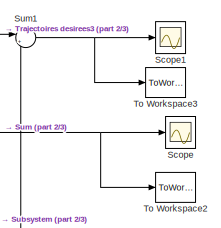
[diagram: root canvas - part 1/3, top right region]
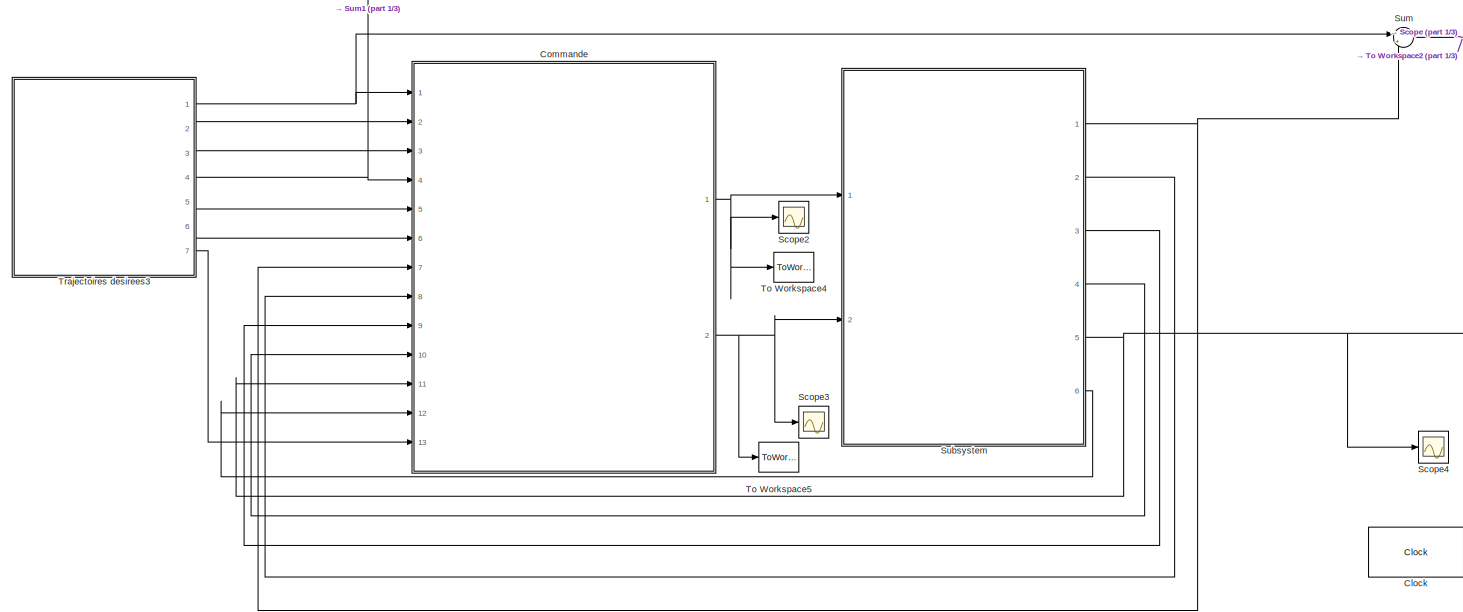
[diagram: root canvas - part 2/3, most of the canvas]
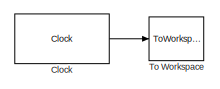
[diagram: root canvas - part 3/3, bottom right region]
MODEL slx_9c1aa722ab29
KIND model
CONFIG AbsTol = auto
CONFIG FixedStep = auto
CONFIG MaxStep = auto
CONFIG MinStep = auto
CONFIG RelTol = 1e-3
CONFIG SampleTimeConstraint = Unconstrained
CONFIG Solver = ode45
CONFIG SolverMode = SingleTasking
CONFIG SolverName = ode45
CONFIG StartTime = 0.0
CONFIG StopTime = 10
BLOCK [Clock] Clock
  Decimation = 1
  DisplayTime = on
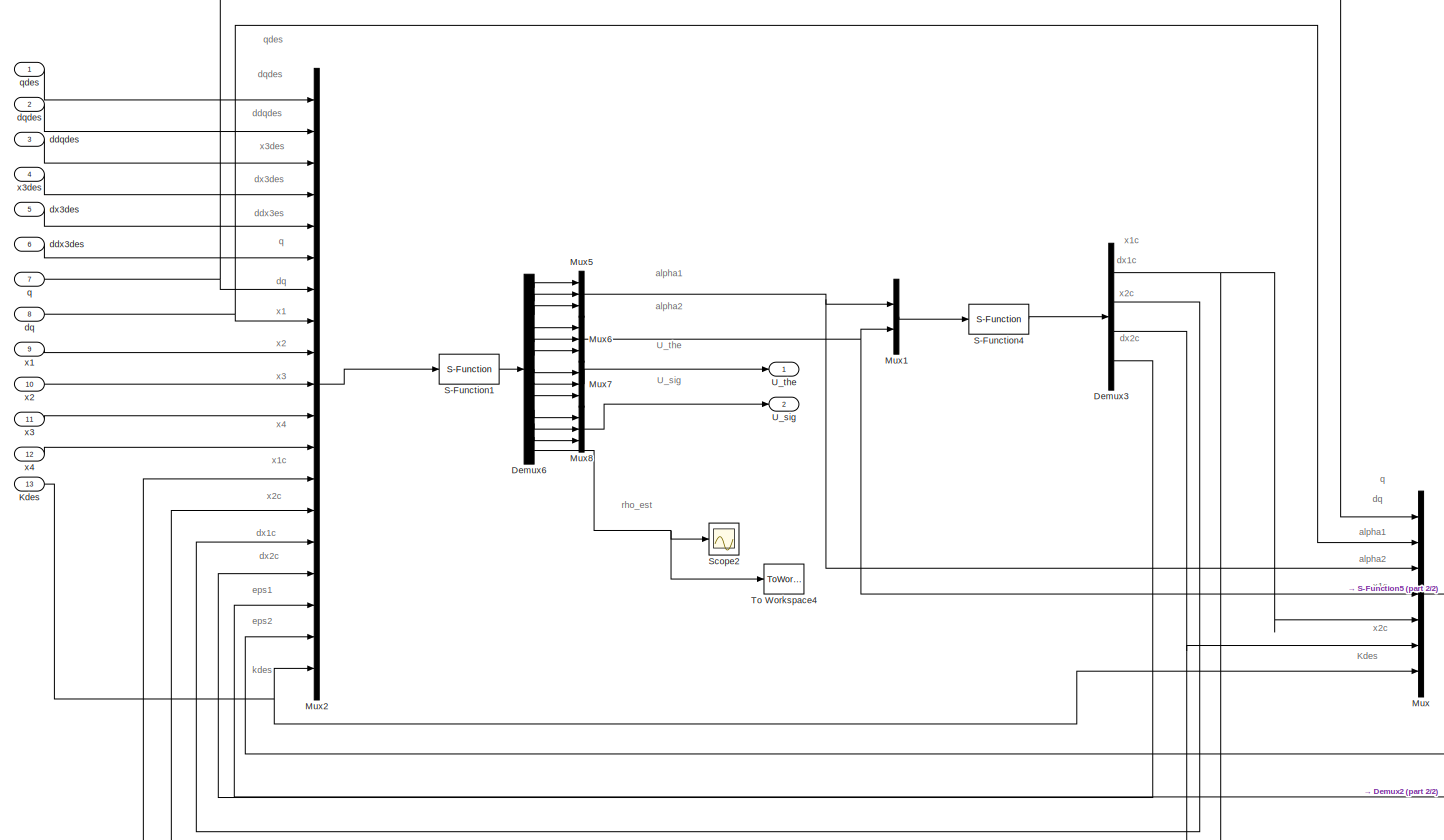
[diagram: Commande - part 1/2, most of the canvas]
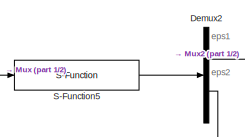
[diagram: Commande - part 2/2, bottom right region]
BLOCK [SubSystem] Commande
  Ports = [13, 2]
  RequestExecContextInheritance = off
BLOCK [Demux] Commande/Demux2
  DisplayOption = bar
  Outputs = 2
  Ports = [1, 2]
BLOCK [Demux] Commande/Demux3
  DisplayOption = bar
  Ports = [1, 4]
BLOCK [Demux] Commande/Demux6
  DisplayOption = bar
  Outputs = 13
  Ports = [1, 13]
BLOCK [Inport] Commande/Kdes
  IconDisplay = Port number
  Port = 13
BLOCK [Mux] Commande/Mux
  DisplayOption = bar
  Inputs = 7
  Ports = [7, 1]
BLOCK [Mux] Commande/Mux1
  DisplayOption = bar
  Inputs = 2
  Ports = [2, 1]
BLOCK [Mux] Commande/Mux2
  DisplayOption = bar
  Inputs = 19
  Ports = [19, 1]
BLOCK [Mux] Commande/Mux5
  DisplayOption = bar
  Inputs = 3
  Ports = [3, 1]
BLOCK [Mux] Commande/Mux6
  DisplayOption = bar
  Inputs = 3
  Ports = [3, 1]
BLOCK [Mux] Commande/Mux7
  DisplayOption = bar
  Inputs = 3
  Ports = [3, 1]
BLOCK [Mux] Commande/Mux8
  DisplayOption = bar
  Inputs = 3
  Ports = [3, 1]
BLOCK [S-Function] Commande/S-Function1
  EnableBusSupport = off
  FunctionName = Commd2_c
  Ports = [1, 1]
  SFunctionDeploymentMode = off
BLOCK [S-Function] Commande/S-Function4
  EnableBusSupport = off
  FunctionName = CmdF
  Ports = [1, 1]
  SFunctionDeploymentMode = off
BLOCK [S-Function] Commande/S-Function5
  EnableBusSupport = off
  FunctionName = CompensatedError
  Ports = [1, 1]
  SFunctionDeploymentMode = off
BLOCK [Scope] Commande/Scope2
  DataFormat = StructureWithTime
  Decimation = 1
  Floating = off
  Grid = on
  LimitDataPoints = off
  MaxDataPoints = 5000
  NumInputPorts = 1
  Ports = [1]
  SampleInput = off
  SampleTime = -1
  SaveName = ScopeData1
  SaveToWorkspace = off
  ShowLegends = off
  TickLabels = OneTimeTick
  TimeRange = auto
  YMax = 52.86321
  YMin = -5.86261
  ZoomMode = on
BLOCK [ToWorkspace] Commande/To Workspace4
  MaxDataPoints = inf
  Ports = [1]
  SampleTime = -1
  VariableName = rho_est
BLOCK [Outport] Commande/U_sig
  IconDisplay = Port number
  Port = 2
BLOCK [Outport] Commande/U_the
  IconDisplay = Port number
BLOCK [Inport] Commande/ddqdes
  IconDisplay = Port number
  Port = 3
BLOCK [Inport] Commande/ddx3des
  IconDisplay = Port number
  Port = 6
BLOCK [Inport] Commande/dq
  IconDisplay = Port number
  Port = 8
BLOCK [Inport] Commande/dqdes
  IconDisplay = Port number
  Port = 2
BLOCK [Inport] Commande/dx3des
  IconDisplay = Port number
  Port = 5
BLOCK [Inport] Commande/q
  IconDisplay = Port number
  Port = 7
BLOCK [Inport] Commande/qdes
  IconDisplay = Port number
BLOCK [Inport] Commande/x1
  IconDisplay = Port number
  Port = 9
BLOCK [Inport] Commande/x2
  IconDisplay = Port number
  Port = 10
BLOCK [Inport] Commande/x3
  IconDisplay = Port number
  Port = 11
BLOCK [Inport] Commande/x3des
  IconDisplay = Port number
  Port = 4
BLOCK [Inport] Commande/x4
  IconDisplay = Port number
  Port = 12
BLOCK [Scope] Scope
  DataFormat = StructureWithTime
  Decimation = 1
  Floating = off
  Grid = on
  LimitDataPoints = off
  MaxDataPoints = 5000
  NumInputPorts = 1
  Ports = [1]
  SampleInput = off
  SampleTime = -1
  SaveName = ScopeData
  SaveToWorkspace = off
  ShowLegends = off
  TickLabels = OneTimeTick
  TimeRange = auto
  YMax = 0.00215
  YMin = -0.00029
  ZoomMode = on
BLOCK [Scope] Scope1
  DataFormat = StructureWithTime
  Decimation = 1
  Floating = off
  Grid = on
  LimitDataPoints = off
  MaxDataPoints = 5000
  NumInputPorts = 1
  Ports = [1]
  SampleInput = off
  SampleTime = -1
  SaveName = ScopeData1
  SaveToWorkspace = off
  ShowLegends = off
  TickLabels = OneTimeTick
  TimeRange = auto
  YMax = 0.09813
  YMin = -0.00715
  ZoomMode = on
BLOCK [Scope] Scope2
  DataFormat = StructureWithTime
  Decimation = 1
  Floating = off
  Grid = on
  LimitDataPoints = off
  MaxDataPoints = 5000
  NumInputPorts = 1
  Ports = [1]
  SampleInput = off
  SampleTime = -1
  SaveName = ScopeData1
  SaveToWorkspace = off
  ShowLegends = off
  TickLabels = OneTimeTick
  TimeRange = auto
  YMax = 54683.36507
  YMin = -44394.24328
  ZoomMode = on
BLOCK [Scope] Scope3
  DataFormat = StructureWithTime
  Decimation = 1
  Floating = off
  Grid = on
  LimitDataPoints = off
  MaxDataPoints = 5000
  NumInputPorts = 1
  Ports = [1]
  SampleInput = off
  SampleTime = -1
  SaveName = ScopeData2
  SaveToWorkspace = off
  ShowLegends = off
  TickLabels = OneTimeTick
  TimeRange = auto
  YMax = 441.18053
  YMin = -49.02006
  ZoomMode = on
BLOCK [Scope] Scope4
  DataFormat = StructureWithTime
  Decimation = 1
  Floating = off
  Grid = on
  LimitDataPoints = off
  MaxDataPoints = 5000
  NumInputPorts = 1
  Ports = [1]
  SampleInput = off
  SampleTime = -1
  SaveName = ScopeData1
  SaveToWorkspace = off
  ShowLegends = off
  TickLabels = OneTimeTick
  TimeRange = auto
  YMax = 2.830000000019
  YMin = 2.829999999996
  ZoomMode = on
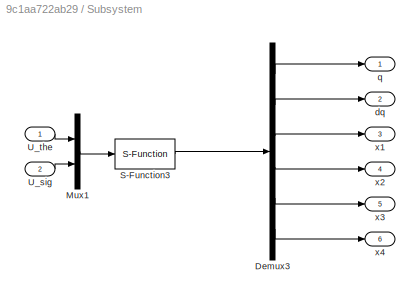
BLOCK [SubSystem] Subsystem
  Ports = [2, 6]
  RequestExecContextInheritance = off
BLOCK [Demux] Subsystem/Demux3
  DisplayOption = bar
  Outputs = 6
  Ports = [1, 6]
BLOCK [Mux] Subsystem/Mux1
  DisplayOption = bar
  Inputs = 2
  Ports = [2, 1]
BLOCK [S-Function] Subsystem/S-Function3
  EnableBusSupport = off
  FunctionName = Modele_c
  Ports = [1, 1]
  SFunctionDeploymentMode = off
BLOCK [Inport] Subsystem/U_sig
  IconDisplay = Port number
  Port = 2
BLOCK [Inport] Subsystem/U_the
  IconDisplay = Port number
BLOCK [Outport] Subsystem/dq
  IconDisplay = Port number
  Port = 2
BLOCK [Outport] Subsystem/q
  IconDisplay = Port number
BLOCK [Outport] Subsystem/x1
  IconDisplay = Port number
  Port = 3
BLOCK [Outport] Subsystem/x2
  IconDisplay = Port number
  Port = 4
BLOCK [Outport] Subsystem/x3
  IconDisplay = Port number
  Port = 5
BLOCK [Outport] Subsystem/x4
  IconDisplay = Port number
  Port = 6
BLOCK [Sum] Sum
  IconShape = round
  InputSameDT = off
  Inputs = |+-
  OutDataTypeStr = Inherit: Inherit via internal rule
  Ports = [2, 1]
  SaturateOnIntegerOverflow = off
BLOCK [Sum] Sum1
  IconShape = round
  InputSameDT = off
  Inputs = |+-
  OutDataTypeStr = Inherit: Inherit via internal rule
  Ports = [2, 1]
  SaturateOnIntegerOverflow = off
BLOCK [ToWorkspace] To Workspace
  MaxDataPoints = inf
  Ports = [1]
  SampleTime = -1
  VariableName = t2
BLOCK [ToWorkspace] To Workspace2
  MaxDataPoints = inf
  Ports = [1]
  SampleTime = -1
  VariableName = error_q
BLOCK [ToWorkspace] To Workspace3
  MaxDataPoints = inf
  Ports = [1]
  SampleTime = -1
  VariableName = error_x3
BLOCK [ToWorkspace] To Workspace4
  MaxDataPoints = inf
  Ports = [1]
  SampleTime = -1
  VariableName = Uthe
BLOCK [ToWorkspace] To Workspace5
  MaxDataPoints = inf
  Ports = [1]
  SampleTime = -1
  VariableName = Usig
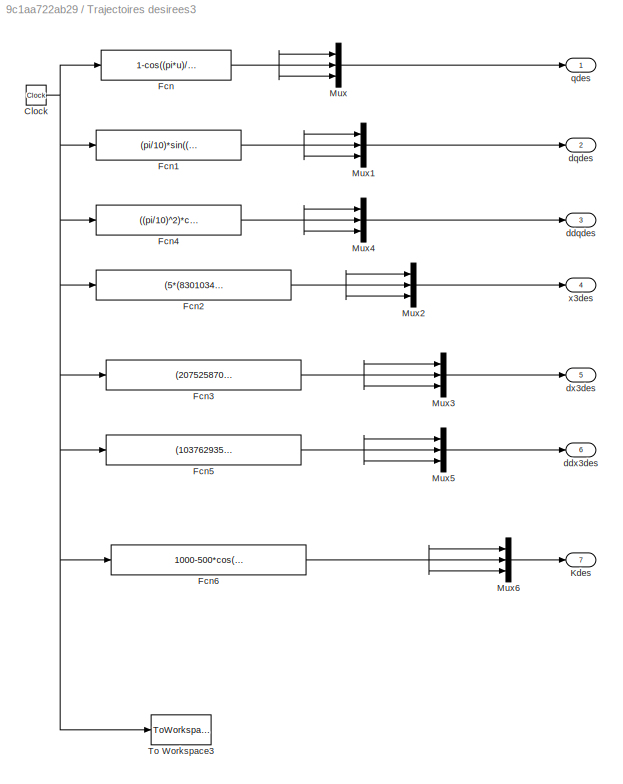
BLOCK [SubSystem] Trajectoires desirees3
  Ports = [0, 7]
  RequestExecContextInheritance = off
BLOCK [Clock] Trajectoires desirees3/Clock
BLOCK [Fcn] Trajectoires desirees3/Fcn
  Expr = 1-cos((pi*u)/10)
BLOCK [Fcn] Trajectoires desirees3/Fcn1
  Expr = (pi/10)*sin((pi*u)/10)
BLOCK [Fcn] Trajectoires desirees3/Fcn2
  Expr = (5*(83010348331692982272*cos((pi*u)/10) + 149418626997047375*(166020696663385964544/29883725399409475 - (83010348331692982272*cos((pi*u)/10))/29883725399409475)^(1/2) - 166020696663385964544))/(2*(83010348331692982272*cos((pi*u)/10) - 165273603528400727669))
BLOCK [Fcn] Trajectoires desirees3/Fcn3
  Expr = (20752587082923245568*pi*sin((pi*u)/10)*(83010348331692982272*cos((pi*u)/10) + 149418626997047375*(166020696663385964544/29883725399409475 - (83010348331692982272*cos((pi*u)/10))/29883725399409475)^(1/2) - 166020696663385964544))/(83010348331692982272*cos((u*pi)/10) - 165273603528400727669)^2 - (5*((41505174165846491136*pi*sin((pi*u)/10))/5 - (20752587082923245568*pi*sin((pi*u)/10))/(- (8301034833...<+161ch>
BLOCK [Fcn] Trajectoires desirees3/Fcn4
  Expr = ((pi/10)^2)*cos((pi*u)/10)
BLOCK [Fcn] Trajectoires desirees3/Fcn5
  Expr = (10376293541461622784*pi^2*cos((pi*u)/10)*(83010348331692982272*cos((pi*u)/10) + 149418626997047375*(166020696663385964544/29883725399409475 - (83010348331692982272*cos((pi*u)/10))/29883725399409475)^(1/2) - 166020696663385964544))/(5*(83010348331692982272*cos((u*pi)/10) - 165273603528400727669)^2) - (41505174165846491136*pi*sin((pi*u)/10)*((41505174165846491136*pi*sin((pi*u)/10))/5 - (20752587082...<+998ch>
BLOCK [Fcn] Trajectoires desirees3/Fcn6
  Expr = 1000-500*cos((pi*u)/10)
BLOCK [Outport] Trajectoires desirees3/Kdes
  IconDisplay = Port number
  Port = 7
BLOCK [Mux] Trajectoires desirees3/Mux
  DisplayOption = bar
  Inputs = 3
  Ports = [3, 1]
BLOCK [Mux] Trajectoires desirees3/Mux1
  DisplayOption = bar
  Inputs = 3
  Ports = [3, 1]
BLOCK [Mux] Trajectoires desirees3/Mux2
  DisplayOption = bar
  Inputs = 3
  Ports = [3, 1]
BLOCK [Mux] Trajectoires desirees3/Mux3
  DisplayOption = bar
  Inputs = 3
  Ports = [3, 1]
BLOCK [Mux] Trajectoires desirees3/Mux4
  DisplayOption = bar
  Inputs = 3
  Ports = [3, 1]
BLOCK [Mux] Trajectoires desirees3/Mux5
  DisplayOption = bar
  Inputs = 3
  Ports = [3, 1]
BLOCK [Mux] Trajectoires desirees3/Mux6
  DisplayOption = bar
  Inputs = 3
  Ports = [3, 1]
BLOCK [ToWorkspace] Trajectoires desirees3/To Workspace3
  FixptAsFi = on
  MaxDataPoints = inf
  Ports = [1]
  SampleTime = -1
  Save2DSignal = 3-D array (concatenate along third dimension)
  VariableName = s2
BLOCK [Outport] Trajectoires desirees3/ddqdes
  IconDisplay = Port number
  Port = 3
BLOCK [Outport] Trajectoires desirees3/ddx3des
  IconDisplay = Port number
  Port = 6
BLOCK [Outport] Trajectoires desirees3/dqdes
  IconDisplay = Port number
  Port = 2
BLOCK [Outport] Trajectoires desirees3/dx3des
  IconDisplay = Port number
  Port = 5
BLOCK [Outport] Trajectoires desirees3/qdes
  IconDisplay = Port number
BLOCK [Outport] Trajectoires desirees3/x3des
  IconDisplay = Port number
  Port = 4
ANNOTATION Commande: Kdes
ANNOTATION Commande: U_sig
ANNOTATION Commande: U_the
ANNOTATION Commande: alpha1
ANNOTATION Commande: alpha2
ANNOTATION Commande: d qdes
ANNOTATION Commande: ddqdes
ANNOTATION Commande: ddx3es
ANNOTATION Commande: dq
ANNOTATION Commande: dx1c
ANNOTATION Commande: dx2c
ANNOTATION Commande: dx3des
ANNOTATION Commande: eps1
ANNOTATION Commande: eps2
ANNOTATION Commande: kdes
ANNOTATION Commande: q
ANNOTATION Commande: qdes
ANNOTATION Commande: rho_est
ANNOTATION Commande: x1
ANNOTATION Commande: x1c
ANNOTATION Commande: x2
ANNOTATION Commande: x2c
ANNOTATION Commande: x3
ANNOTATION Commande: x3des
ANNOTATION Commande: x4
LINE Clock:1 -> To Workspace:1
LINE Commande/Demux2:1 -> Commande/Mux2:17
LINE Commande/Demux2:2 -> Commande/Mux2:18
NET Commande/Demux3:1 -> Commande/Mux2:13, Commande/Mux:5
LINE Commande/Demux3:2 -> Commande/Mux2:15
NET Commande/Demux3:3 -> Commande/Mux2:14, Commande/Mux:6
LINE Commande/Demux3:4 -> Commande/Mux2:16
LINE Commande/Demux6:1 -> Commande/Mux5:1
LINE Commande/Demux6:10 -> Commande/Mux8:1
LINE Commande/Demux6:11 -> Commande/Mux8:2
LINE Commande/Demux6:12 -> Commande/Mux8:3
NET Commande/Demux6:13 -> Commande/Scope2:1, Commande/To Workspace4:1
LINE Commande/Demux6:2 -> Commande/Mux5:2
LINE Commande/Demux6:3 -> Commande/Mux5:3
LINE Commande/Demux6:4 -> Commande/Mux6:1
LINE Commande/Demux6:5 -> Commande/Mux6:2
LINE Commande/Demux6:6 -> Commande/Mux6:3
LINE Commande/Demux6:7 -> Commande/Mux7:1
LINE Commande/Demux6:8 -> Commande/Mux7:2
LINE Commande/Demux6:9 -> Commande/Mux7:3
NET Commande/Kdes:1 -> Commande/Mux2:19, Commande/Mux:7
LINE Commande/Mux1:1 -> Commande/S-Function4:1
LINE Commande/Mux2:1 -> Commande/S-Function1:1
NET Commande/Mux5:1 -> Commande/Mux1:1, Commande/Mux:3
NET Commande/Mux6:1 -> Commande/Mux1:2, Commande/Mux:4
LINE Commande/Mux7:1 -> Commande/U_the:1
LINE Commande/Mux8:1 -> Commande/U_sig:1
LINE Commande/Mux:1 -> Commande/S-Function5:1
LINE Commande/S-Function1:1 -> Commande/Demux6:1
LINE Commande/S-Function4:1 -> Commande/Demux3:1
LINE Commande/S-Function5:1 -> Commande/Demux2:1
LINE Commande/ddqdes:1 -> Commande/Mux2:3
LINE Commande/ddx3des:1 -> Commande/Mux2:6
NET Commande/dq:1 -> Commande/Mux2:8, Commande/Mux:2
LINE Commande/dqdes:1 -> Commande/Mux2:2
LINE Commande/dx3des:1 -> Commande/Mux2:5
NET Commande/q:1 -> Commande/Mux2:7, Commande/Mux:1
LINE Commande/qdes:1 -> Commande/Mux2:1
LINE Commande/x1:1 -> Commande/Mux2:9
LINE Commande/x2:1 -> Commande/Mux2:10
LINE Commande/x3:1 -> Commande/Mux2:11
LINE Commande/x3des:1 -> Commande/Mux2:4
LINE Commande/x4:1 -> Commande/Mux2:12
NET Commande:1 -> Scope2:1, Subsystem:1, To Workspace4:1
NET Commande:2 -> Scope3:1, Subsystem:2, To Workspace5:1
LINE Subsystem/Demux3:1 -> Subsystem/q:1
LINE Subsystem/Demux3:2 -> Subsystem/dq:1
LINE Subsystem/Demux3:3 -> Subsystem/x1:1
LINE Subsystem/Demux3:4 -> Subsystem/x2:1
LINE Subsystem/Demux3:5 -> Subsystem/x3:1
LINE Subsystem/Demux3:6 -> Subsystem/x4:1
LINE Subsystem/Mux1:1 -> Subsystem/S-Function3:1
LINE Subsystem/S-Function3:1 -> Subsystem/Demux3:1
LINE Subsystem/U_sig:1 -> Subsystem/Mux1:2
LINE Subsystem/U_the:1 -> Subsystem/Mux1:1
NET Subsystem:1 -> Commande:7, Sum:2
LINE Subsystem:2 -> Commande:8
LINE Subsystem:3 -> Commande:9
LINE Subsystem:4 -> Commande:10
NET Subsystem:5 -> Commande:11, Scope4:1, Sum1:2
LINE Subsystem:6 -> Commande:12
NET Sum1:1 -> Scope1:1, To Workspace3:1
NET Sum:1 -> Scope:1, To Workspace2:1
NET Trajectoires desirees3/Clock:1 -> Trajectoires desirees3/Fcn1:1, Trajectoires desirees3/Fcn2:1, Trajectoires desirees3/Fcn3:1, Trajectoires desirees3/Fcn4:1, Trajectoires desirees3/Fcn5:1, Trajectoires desirees3/Fcn6:1, Trajectoires desirees3/Fcn:1, Trajectoires desirees3/To Workspace3:1
NET Trajectoires desirees3/Fcn1:1 -> Trajectoires desirees3/Mux1:1, Trajectoires desirees3/Mux1:2, Trajectoires desirees3/Mux1:3
NET Trajectoires desirees3/Fcn2:1 -> Trajectoires desirees3/Mux2:1, Trajectoires desirees3/Mux2:2, Trajectoires desirees3/Mux2:3
NET Trajectoires desirees3/Fcn3:1 -> Trajectoires desirees3/Mux3:1, Trajectoires desirees3/Mux3:2, Trajectoires desirees3/Mux3:3
NET Trajectoires desirees3/Fcn4:1 -> Trajectoires desirees3/Mux4:1, Trajectoires desirees3/Mux4:2, Trajectoires desirees3/Mux4:3
NET Trajectoires desirees3/Fcn5:1 -> Trajectoires desirees3/Mux5:1, Trajectoires desirees3/Mux5:2, Trajectoires desirees3/Mux5:3
NET Trajectoires desirees3/Fcn6:1 -> Trajectoires desirees3/Mux6:1, Trajectoires desirees3/Mux6:2, Trajectoires desirees3/Mux6:3
NET Trajectoires desirees3/Fcn:1 -> Trajectoires desirees3/Mux:1, Trajectoires desirees3/Mux:2, Trajectoires desirees3/Mux:3
LINE Trajectoires desirees3/Mux1:1 -> Trajectoires desirees3/dqdes:1
LINE Trajectoires desirees3/Mux2:1 -> Trajectoires desirees3/x3des:1
LINE Trajectoires desirees3/Mux3:1 -> Trajectoires desirees3/dx3des:1
LINE Trajectoires desirees3/Mux4:1 -> Trajectoires desirees3/ddqdes:1
LINE Trajectoires desirees3/Mux5:1 -> Trajectoires desirees3/ddx3des:1
LINE Trajectoires desirees3/Mux6:1 -> Trajectoires desirees3/Kdes:1
LINE Trajectoires desirees3/Mux:1 -> Trajectoires desirees3/qdes:1
NET Trajectoires desirees3:1 -> Commande:1, Sum:1
LINE Trajectoires desirees3:2 -> Commande:2
LINE Trajectoires desirees3:3 -> Commande:3
NET Trajectoires desirees3:4 -> Commande:4, Sum1:1
LINE Trajectoires desirees3:5 -> Commande:5
LINE Trajectoires desirees3:6 -> Commande:6
LINE Trajectoires desirees3:7 -> Commande:13
note: NET lines group one-source signal fan-out (src -> all destinations, sorted); 1:1 wires keep LINE
